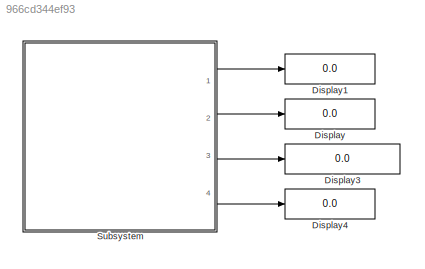
MODEL slx_966cd344ef93
KIND model
CONFIG AbsTol = auto
CONFIG FixedStep = auto
CONFIG MaxStep = auto
CONFIG MinStep = auto
CONFIG RelTol = 1e-3
CONFIG SampleTimeConstraint = Unconstrained
CONFIG Solver = FixedStepDiscrete
CONFIG SolverMode = SingleTasking
CONFIG SolverName = FixedStepDiscrete
CONFIG StartTime = 0.0
CONFIG StopTime = 3
BLOCK [Display] Display
  Decimation = 1
  Format = binary (Stored Integer)
  Ports = [1]
BLOCK [Display] Display1
  Decimation = 1
  Ports = [1]
BLOCK [Display] Display3
  Decimation = 1
  Format = binary (Stored Integer)
  Ports = [1]
BLOCK [Display] Display4
  Decimation = 1
  Ports = [1]
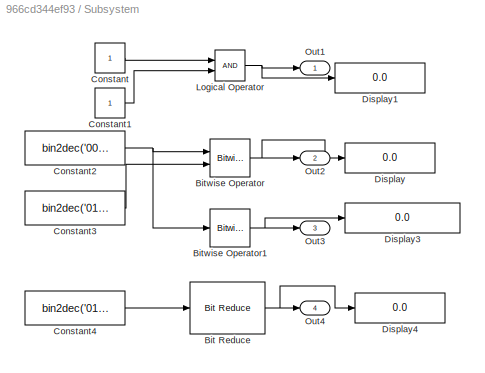
BLOCK [SubSystem] Subsystem
  Ports = [0, 4]
  RequestExecContextInheritance = off
  Variant = off
BLOCK [Reference] Subsystem/Bit Reduce  REF=hdlsllib/HDL Operations/Bit Reduce
  Ports = [1, 1]
  SourceBlock = hdlsllib/HDL Operations/Bit Reduce
  SourceType = Bit Reduce
BLOCK [Reference] Subsystem/Bitwise Operator  REF=simulink/Logic and Bit
Operations/Bitwise
Operator
  Ports = [2, 1]
  SourceBlock = simulink/Logic and Bit\nOperations/Bitwise\nOperator
  SourceType = Bitwise Operator
BLOCK [Reference] Subsystem/Bitwise Operator1  REF=simulink/Logic and Bit
Operations/Bitwise
Operator
  Ports = [1, 1]
  SourceBlock = simulink/Logic and Bit\nOperations/Bitwise\nOperator
  SourceType = Bitwise Operator
BLOCK [Constant] Subsystem/Constant
  OutDataTypeStr = boolean
  SampleTime = 1
BLOCK [Constant] Subsystem/Constant1
  OutDataTypeStr = boolean
  SampleTime = 1
BLOCK [Constant] Subsystem/Constant2
  OutDataTypeStr = int8
  SampleTime = 1
  Value = bin2dec('00110101')
BLOCK [Constant] Subsystem/Constant3
  OutDataTypeStr = int8
  SampleTime = 1
  Value = bin2dec('01100110')
BLOCK [Constant] Subsystem/Constant4
  OutDataTypeStr = int8
  SampleTime = 1
  Value = bin2dec('01110110')
BLOCK [Display] Subsystem/Display
  Decimation = 1
  Format = binary (Stored Integer)
  Ports = [1]
BLOCK [Display] Subsystem/Display1
  Decimation = 1
  Format = binary (Stored Integer)
  Ports = [1]
BLOCK [Display] Subsystem/Display3
  Decimation = 1
  Format = binary (Stored Integer)
  Ports = [1]
BLOCK [Display] Subsystem/Display4
  Decimation = 1
  Format = binary (Stored Integer)
  Ports = [1]
BLOCK [Logic] Subsystem/Logical Operator
  AllPortsSameDT = off
  OutDataTypeStr = boolean
  Ports = [2, 1]
BLOCK [Outport] Subsystem/Out1
  IconDisplay = Port number
BLOCK [Outport] Subsystem/Out2
  IconDisplay = Port number
  Port = 2
BLOCK [Outport] Subsystem/Out3
  IconDisplay = Port number
  Port = 3
BLOCK [Outport] Subsystem/Out4
  IconDisplay = Port number
  Port = 4
NET Subsystem/Bit Reduce:1 -> Subsystem/Display4:1, Subsystem/Out4:1
NET Subsystem/Bitwise Operator1:1 -> Subsystem/Display3:1, Subsystem/Out3:1
NET Subsystem/Bitwise Operator:1 -> Subsystem/Display:1, Subsystem/Out2:1
LINE Subsystem/Constant1:1 -> Subsystem/Logical Operator:2
NET Subsystem/Constant2:1 -> Subsystem/Bitwise Operator1:1, Subsystem/Bitwise Operator:1
LINE Subsystem/Constant3:1 -> Subsystem/Bitwise Operator:2
LINE Subsystem/Constant4:1 -> Subsystem/Bit Reduce:1
LINE Subsystem/Constant:1 -> Subsystem/Logical Operator:1
NET Subsystem/Logical Operator:1 -> Subsystem/Display1:1, Subsystem/Out1:1
LINE Subsystem:1 -> Display1:1
LINE Subsystem:2 -> Display:1
LINE Subsystem:3 -> Display3:1
LINE Subsystem:4 -> Display4:1
note: NET lines group one-source signal fan-out (src -> all destinations, sorted); 1:1 wires keep LINE
